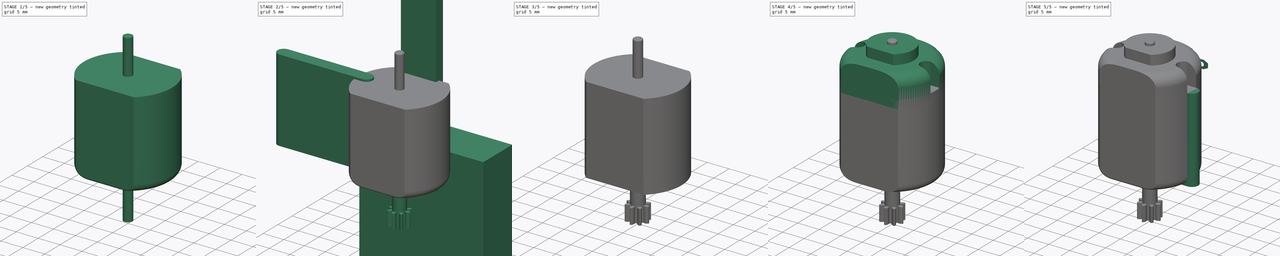
[diagram: build sequence overview — one tinted view per stage of 5, left to right]
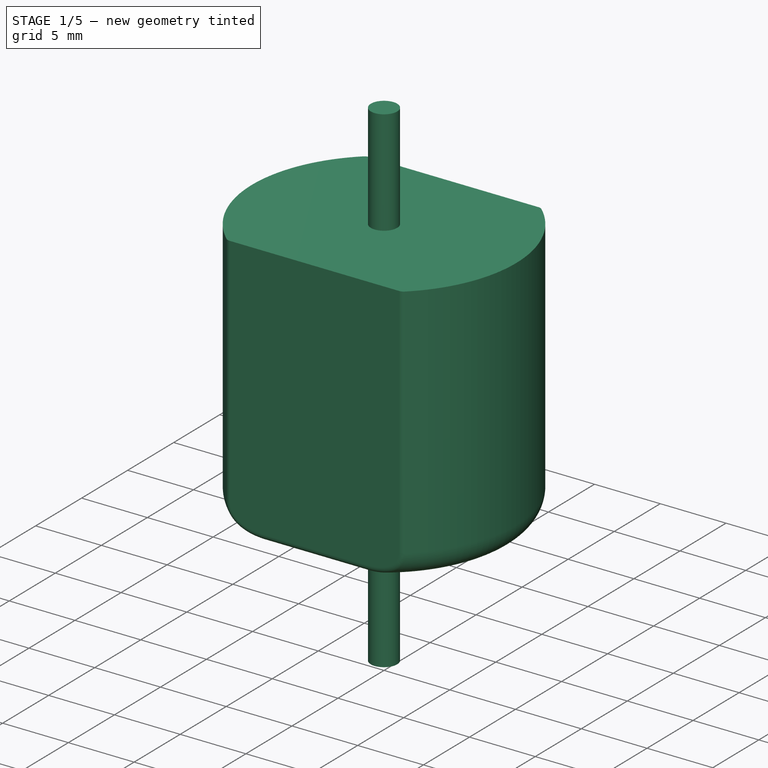
[diagram: stage 1 of 5 — iso view after this stage's code; geometry added in this stage tinted green]
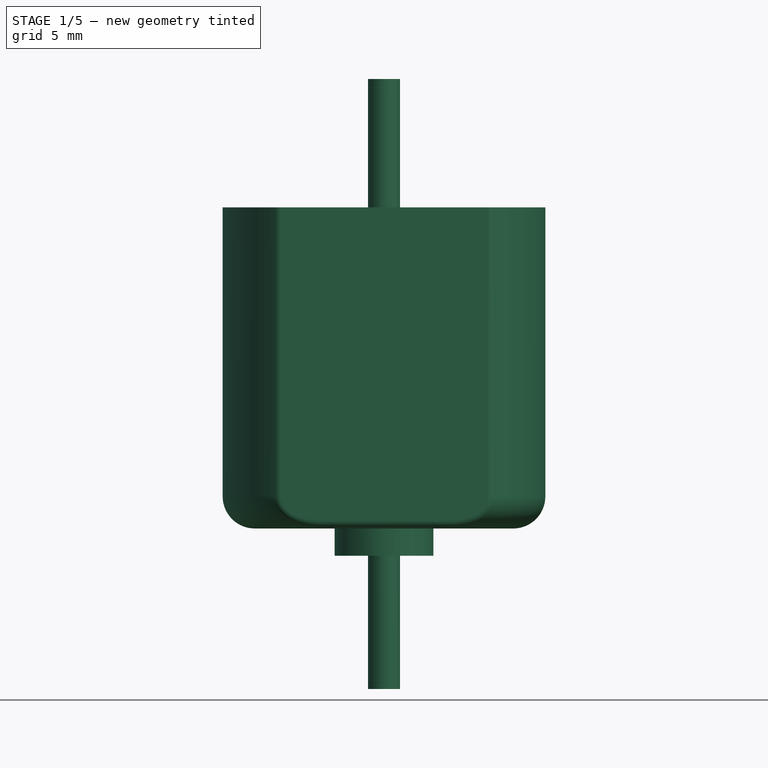
[diagram: stage 1 of 5 — front view after this stage's code; geometry added in this stage tinted green]
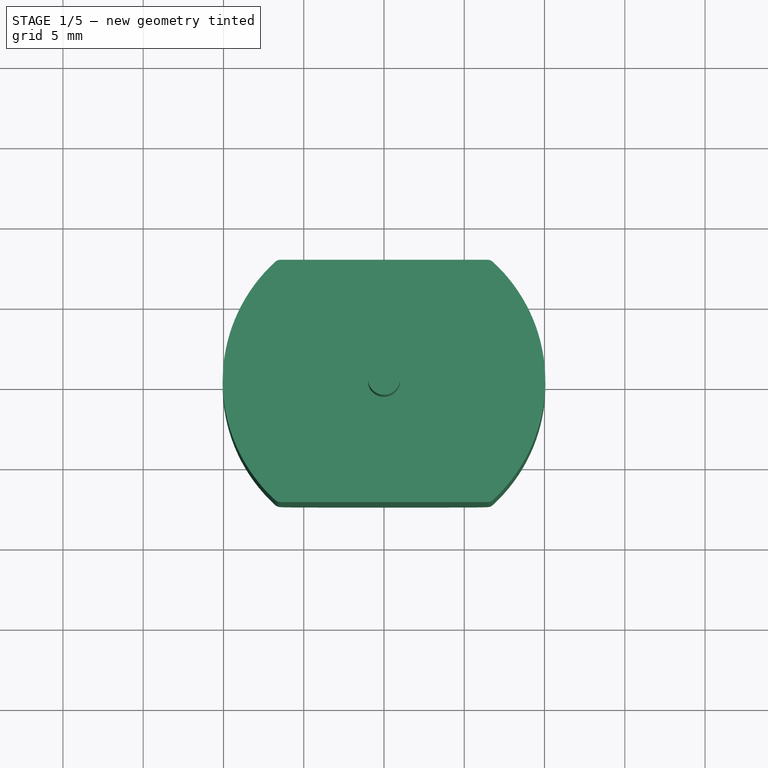
[diagram: stage 1 of 5 — top view after this stage's code; geometry added in this stage tinted green]
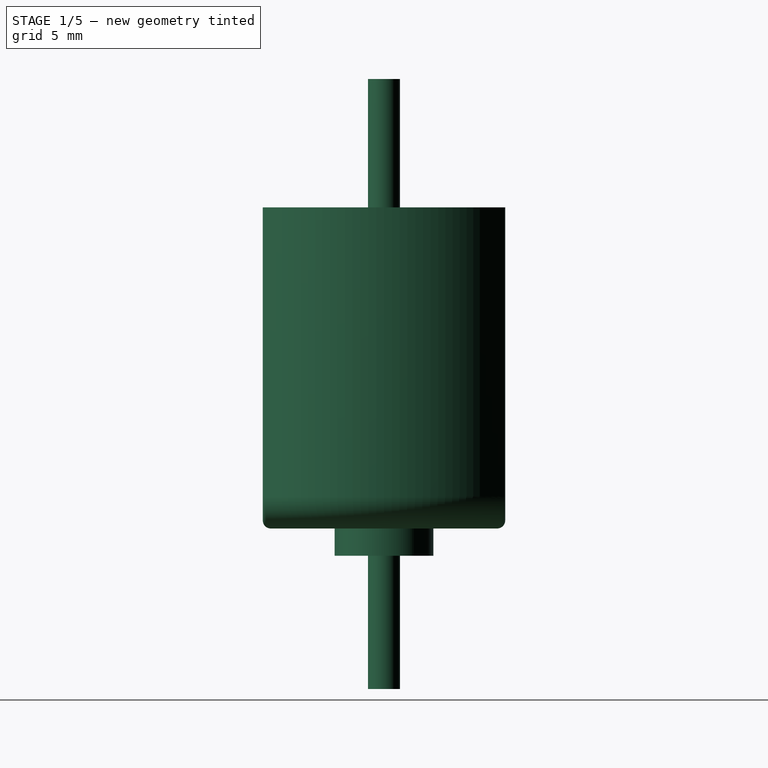
[diagram: stage 1 of 5 — right view after this stage's code; geometry added in this stage tinted green]
FCSTD DOCUMENT  (FreeCAD 0.15R4671 (Git))
Label: Motor DC 25mmDef
License: CreativeCommons Attribution-ShareAlike
LicenseURL: http://creativecommons.org/licenses/by-sa/4.0/
objects: Part::Cut×13, Part::Box×12, Part::Cylinder×7, Part::Fillet×5, Part::MultiFuse×4, PartDesign::Pad×4, Sketcher::SketchObject×3, Part::FeaturePython×3, App::DocumentObjectGroup×3, Part::Thickness×2, Part::Part2DObjectPython×1
note: 58 computed .brp shape members not serialized (recipe doc carries the construction recipe); baked Part::Feature solids carry a one-line shape summary decoded from their .brp

FEATURE [Part::Cylinder] Cylinder002  label="Cilindro005"
  Angle = 360
  Height = 20
  Radius = 10.05
FEATURE [Part::Box] Box008  label="Cubo009"
  Height = 30
  Length = 30
  Placement = pos=(-15,7.55,-3) rot=(0,0,1;0rad)
  Width = 10
FEATURE [Part::Box] Box009  label="Cubo010"
  Height = 30
  Length = 30
  Placement = pos=(-15,-17.55,-3) rot=(0,0,1;0rad)
  Width = 10
FEATURE [Part::Fillet] Fillet001
  Base = -> Cylinder002
  Edges = 1 edges r=2: [Edge3]
FEATURE [Part::Cut] Cut008
  Base = -> Fillet001
  Tool = -> Box009
FEATURE [Part::Cut] Cut009  label="CuerpoBase"
  Base = -> Cut008
  Tool = -> Box008
FEATURE [App::DocumentObjectGroup] Grupo003  label="GrTapa2"
  Group = -> [Fusion,Clone,Cut020]
FEATURE [Part::Thickness] Thickness001
  Intersection = false
  Join = 0
  Mode = 0
  Placement = pos=(0,0,24) rot=(1,0,0;3.14159rad)
  SelfIntersection = false
  Value = -0.1
FEATURE [Part::MultiFuse] Fusion003
  Shapes = -> [Cut009,Thickness001]
FEATURE [App::DocumentObjectGroup] Grupo002  label="Cuerpo"
  Group = -> [Cylinder006,Fusion003]
FEATURE [Part::Cylinder] Cylinder007  label="preEje"
  Angle = 360
  Height = 38
  Placement = pos=(0,0,-10) rot=(0,0,1;0rad)
  Radius = 1
FEATURE [Part::Fillet] Fillet004  label="CuerpoMotor"
  Base = -> Fusion003
  Edges = 6 edges r=0.5: [Edge7,Edge11,Edge15,Edge16,Edge19,Edge21]
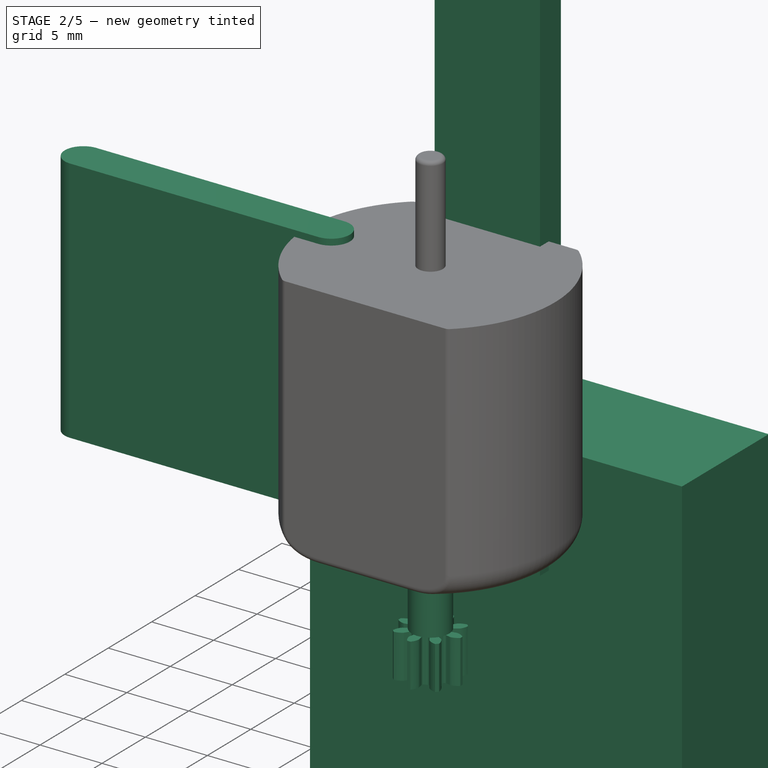
[diagram: stage 2 of 5 — iso view after this stage's code; geometry added in this stage tinted green]
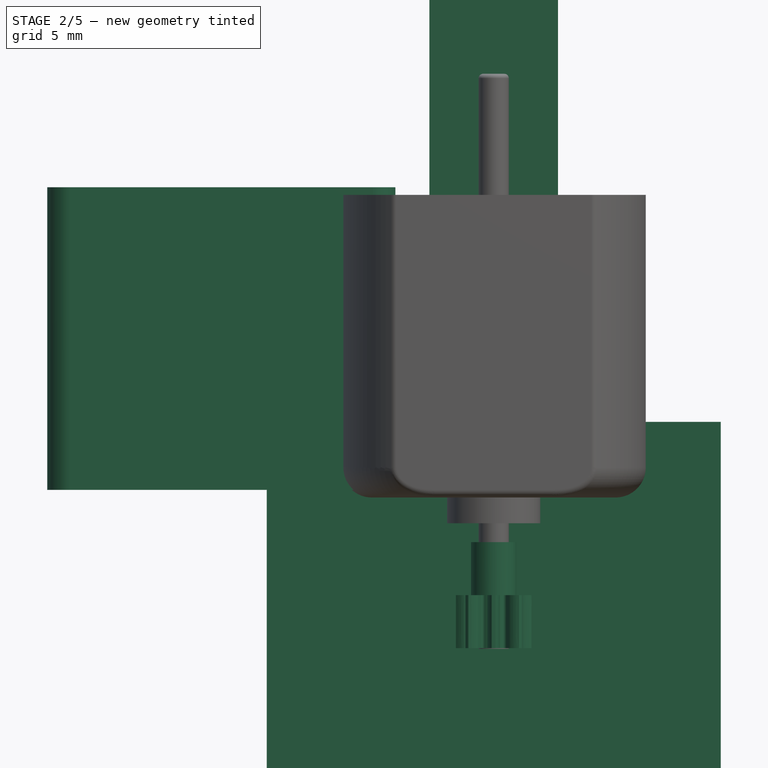
[diagram: stage 2 of 5 — front view after this stage's code; geometry added in this stage tinted green]
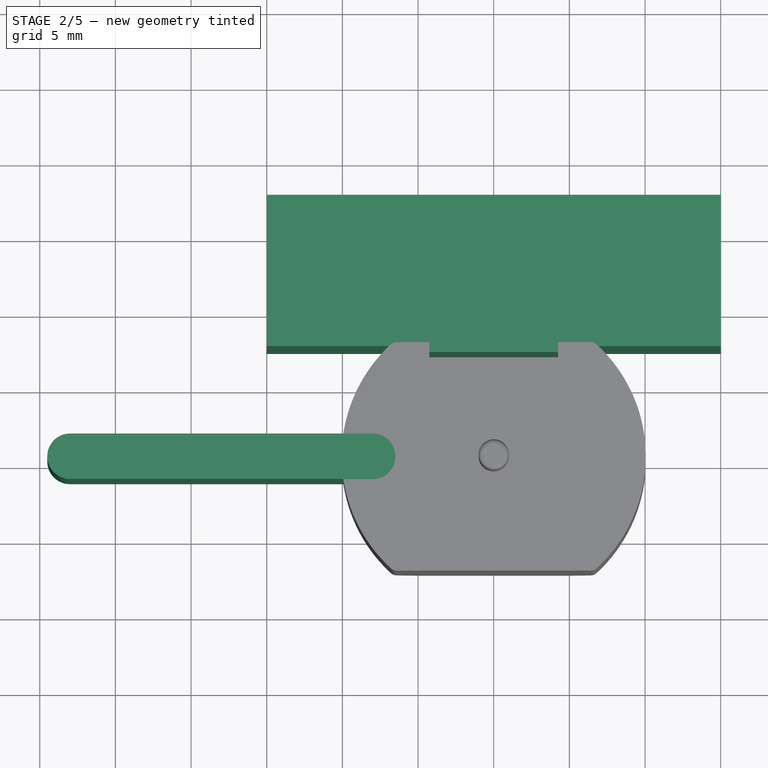
[diagram: stage 2 of 5 — top view after this stage's code; geometry added in this stage tinted green]
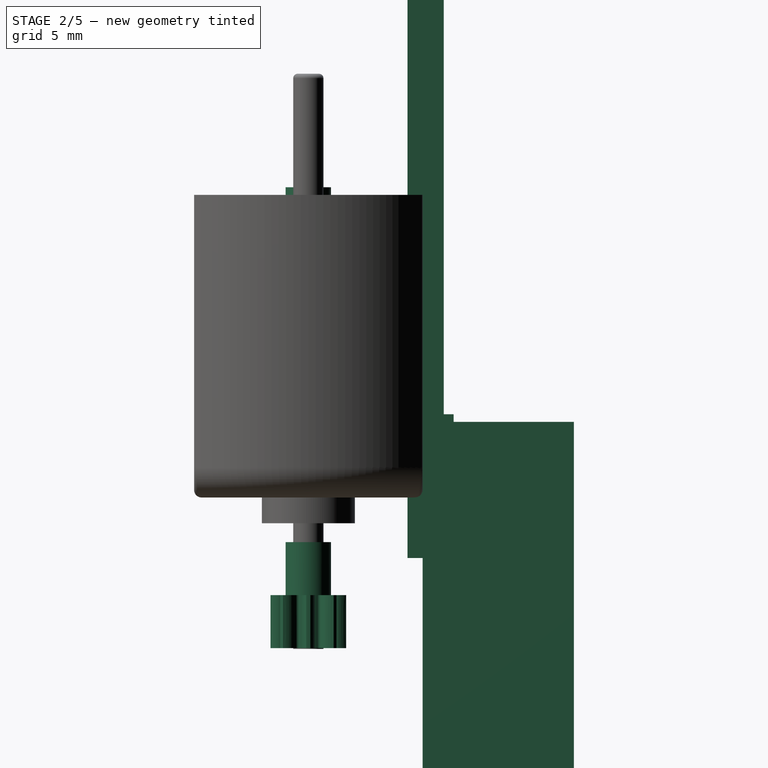
[diagram: stage 2 of 5 — right view after this stage's code; geometry added in this stage tinted green]
FEATURE [Part::Box] Box014  label="Cubo015"
  Height = 44
  Length = 8.5
  Placement = pos=(-4.25,6.55,-4) rot=(0,0,1;0rad)
  Width = 2.4
FEATURE [Part::Box] Box015  label="Cubo016"
  Height = 30
  Length = 30
  Placement = pos=(-15,7.55,-25) rot=(0,0,1;0rad)
  Width = 10
FEATURE [Part::Box] Box016  label="Cubo017"
  Height = 2
  Length = 2
  Placement = pos=(-1,7.6,3.5) rot=(0,0,1;0rad)
  Width = 2
FEATURE [Sketcher::SketchObject] Sketch002
  sketch-geometry (4):
    g0: ArcOfCircle CenterX=-10 CenterY=0 CenterZ=0 NormalX=0 NormalY=0 NormalZ=1 Radius=1.5 StartAngle=1.5708 EndAngle=4.71239
    g1: ArcOfCircle CenterX=10 CenterY=0 CenterZ=0 NormalX=0 NormalY=0 NormalZ=1 Radius=1.5 StartAngle=4.71239 EndAngle=7.85398
    g2: LineSegment StartX=-10 StartY=-1.5 StartZ=0 EndX=10 EndY=-1.5 EndZ=0
    g3: LineSegment StartX=-10 StartY=1.5 StartZ=0 EndX=10 EndY=1.5 EndZ=0
  constraints (10):
    c: Tangent(g0,g3) = 1.5708
    c: Tangent(g0,g2) = -1.5708
    c: Tangent(g2,g1) = -1.5708
    c: Tangent(g3,g1) = 1.5708
    c: Horizontal(g2)
    c: Equal(g0,g1)
    c: PointOnObject(g0,g-1)
    c: Symmetric(g0,g1,g-2)
    c: Radius(g0) = 1.5
    c: DistanceX(g0,g1) = 20
FEATURE [PartDesign::Pad] Pad002
  Length = 20
  Length2 = 100
  Sketch = -> Sketch002
  Type = 0
FEATURE [App::DocumentObjectGroup] Grupo001  label="GR_AuxMotor"
  Group = -> [Pad,Pad001,Pad002]
FEATURE [Part::FeaturePython] Clone003  label="Clone of Pad003"  # Draft clone (typed FeaturePython)
  Objects = -> [Pad002]
  Placement = pos=(-18,0,0.5) rot=(0,0,1;0rad)
  Scale = (1,1,1)
FEATURE [Part::Cylinder] Cylinder006  label="Cilindro009"
  Angle = 360
  Height = 1.6
  Placement = pos=(0,0,-1.7) rot=(0,0,1;0rad)
  Radius = 2.95
FEATURE [Part::Part2DObjectPython] InvoluteGear  # Draft 2D object (typed FeaturePython)
  ExternalGear = true
  HighPrecision = true
  Modules = 0.5
  NumberOfTeeth = 8
  PressureAngle = 20
FEATURE [PartDesign::Pad] Pad003
  Length = 3.5
  Length2 = 100
  Sketch = -> InvoluteGear
  Type = 0
FEATURE [Part::Cylinder] Cylinder008  label="Cilindro003"
  Angle = 360
  Height = 3.5
  Placement = pos=(0,0,3.5) rot=(0,0,1;0rad)
  Radius = 1.5
FEATURE [Part::MultiFuse] Fusion004  label="RDentada"
  Placement = pos=(0,0,-9.95) rot=(0,0,1;0rad)
  Shapes = -> [Pad003,Cylinder008]
FEATURE [Part::Fillet] Fillet  label="Eje"
  Base = -> Cylinder007
  Edges = 1 edges r=0.3: [Edge1]
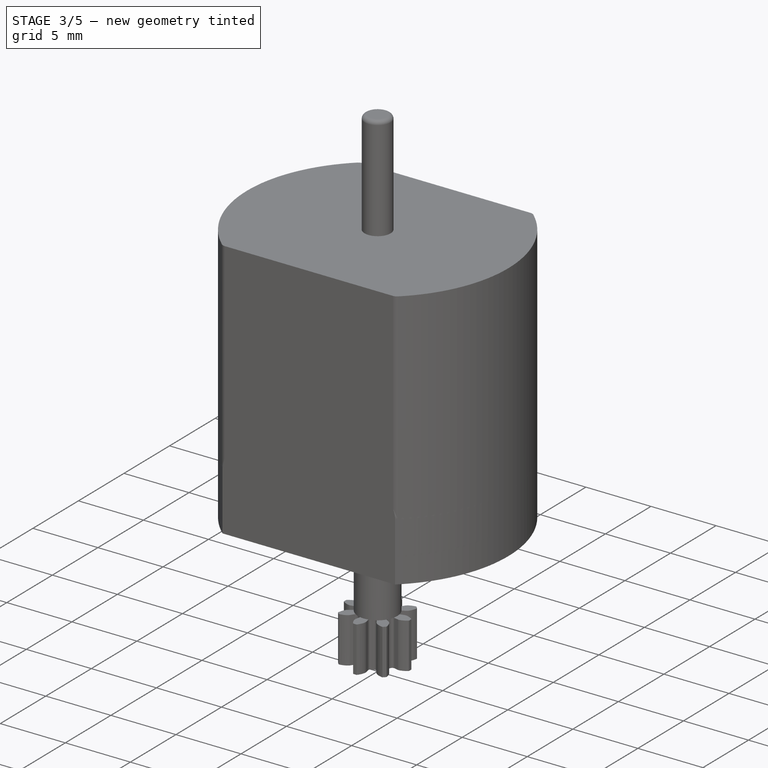
[diagram: stage 3 of 5 — iso view after this stage's code; geometry added in this stage tinted green]
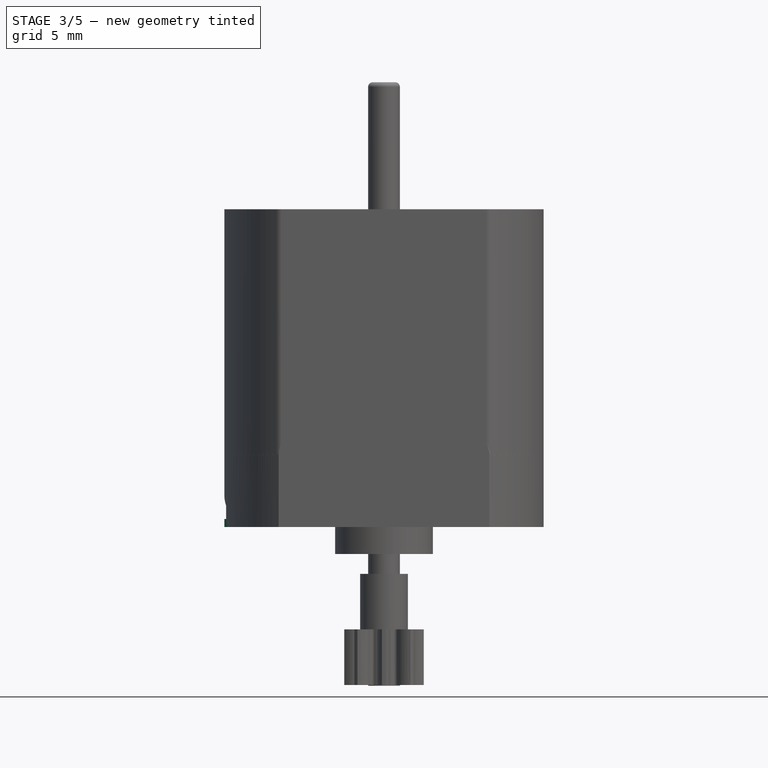
[diagram: stage 3 of 5 — front view after this stage's code; geometry added in this stage tinted green]
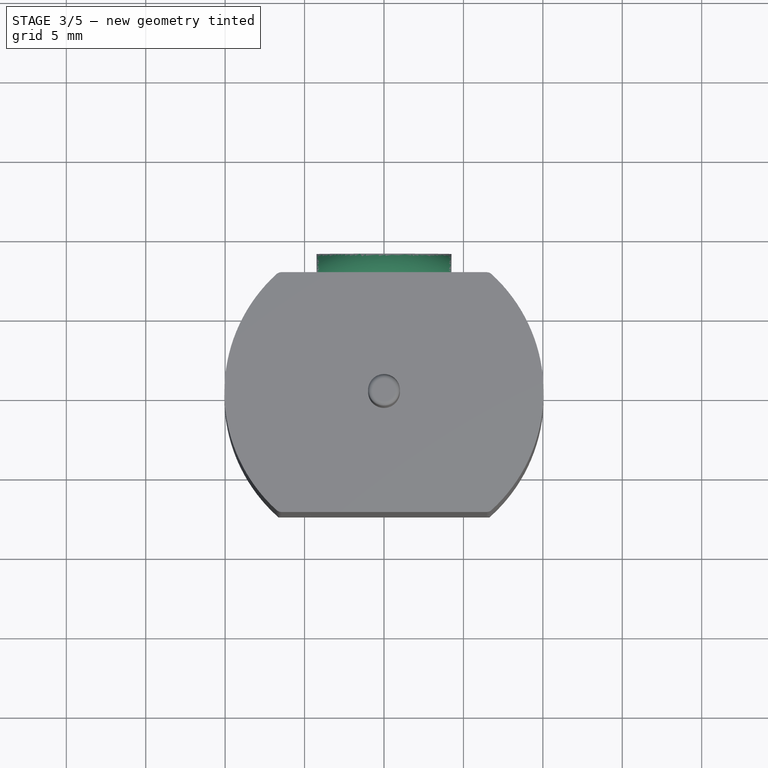
[diagram: stage 3 of 5 — top view after this stage's code; geometry added in this stage tinted green]
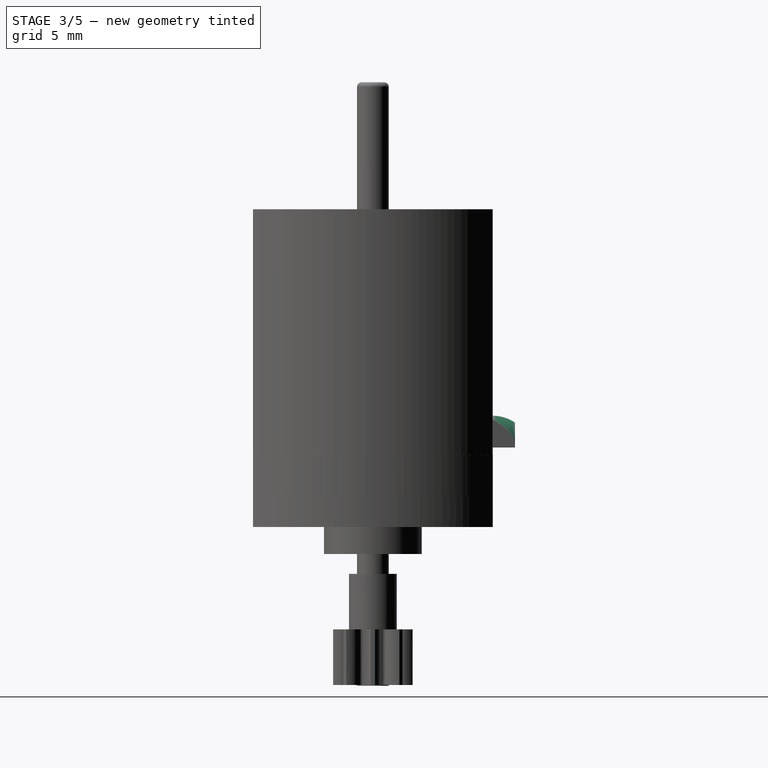
[diagram: stage 3 of 5 — right view after this stage's code; geometry added in this stage tinted green]
FEATURE [Part::Cylinder] Cylinder004  label="Cilindro007"
  Angle = 360
  Height = 7
  Radius = 10.05
FEATURE [Part::Box] Box012  label="Cubo013"
  Height = 30
  Length = 30
  Placement = pos=(-15,7.55,-3) rot=(0,0,1;0rad)
  Width = 10
FEATURE [Part::Box] Box013  label="Cubo014"
  Height = 30
  Length = 30
  Placement = pos=(-15,-17.55,-3) rot=(0,0,1;0rad)
  Width = 10
FEATURE [Part::Fillet] Fillet003
  Base = -> Cylinder004
  Edges = 1 edges r=2.5: [Edge1]
FEATURE [Part::Cut] Cut012
  Base = -> Box012
  Placement = pos=(0,0,-12) rot=(0,0,1;0rad)
  Tool = -> Box014
FEATURE [Part::Cut] Cut013
  Base = -> Fillet003
  Tool = -> Cut012
FEATURE [Part::Cut] Cut014
  Base = -> Cut013
  Tool = -> Box013
FEATURE [Part::Cut] Cut015
  Base = -> Cut014
  Tool = -> Box015
FEATURE [Part::Cut] Cut016
  Base = -> Cut015
  Tool = -> Box016
FEATURE [Part::Cut] Cut018
  Base = -> Cut016
  Tool = -> Clone003
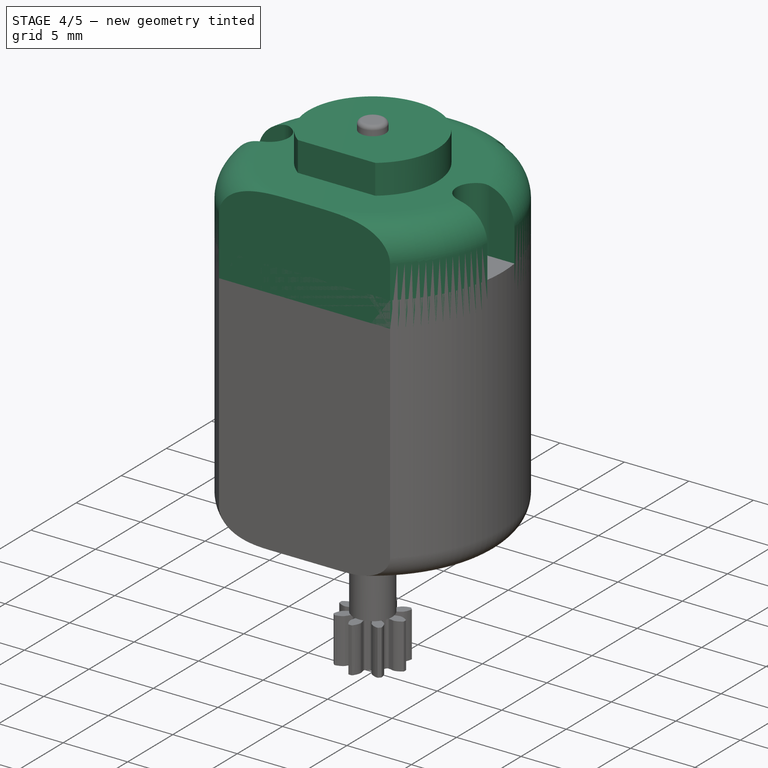
[diagram: stage 4 of 5 — iso view after this stage's code; geometry added in this stage tinted green]
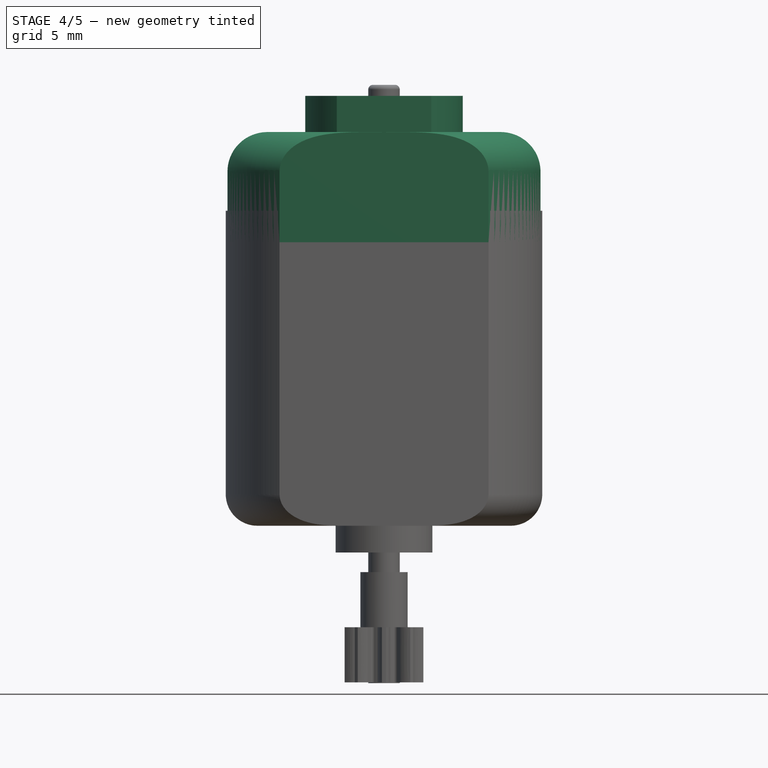
[diagram: stage 4 of 5 — front view after this stage's code; geometry added in this stage tinted green]
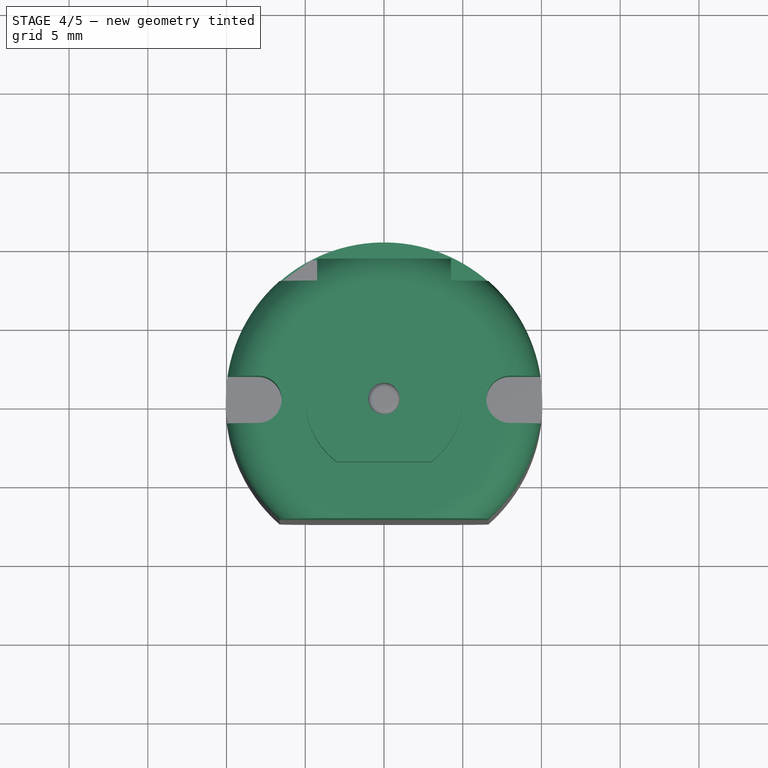
[diagram: stage 4 of 5 — top view after this stage's code; geometry added in this stage tinted green]
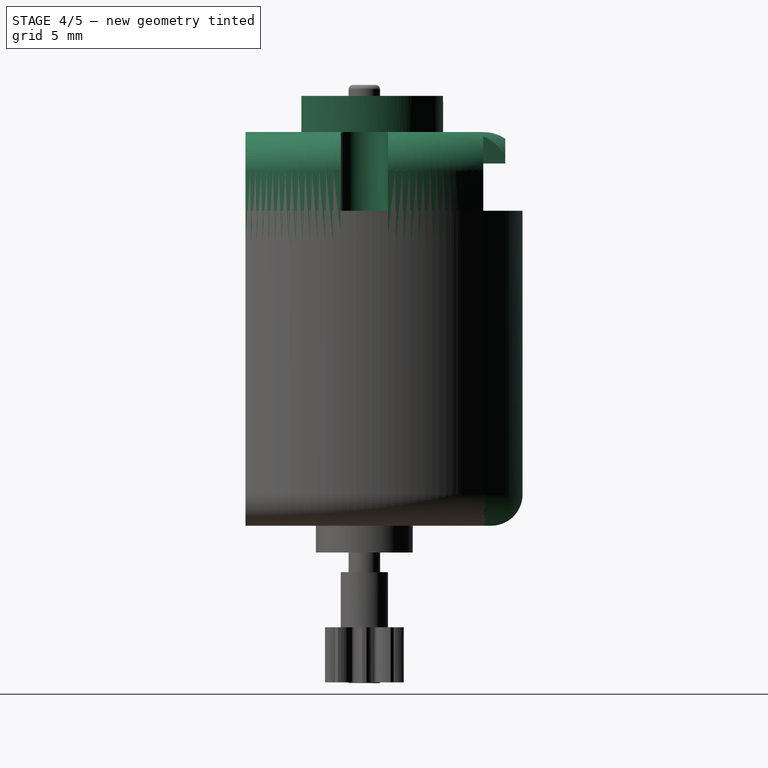
[diagram: stage 4 of 5 — right view after this stage's code; geometry added in this stage tinted green]
FEATURE [Part::Cylinder] Cylinder003  label="Cilindro006"
  Angle = 360
  Height = 20
  Radius = 10.05
FEATURE [Part::Box] Box011  label="Cubo012"
  Height = 30
  Length = 30
  Placement = pos=(-15,-17.55,-3) rot=(0,0,1;0rad)
  Width = 10
FEATURE [Part::Fillet] Fillet002
  Base = -> Cylinder003
  Edges = 1 edges r=2: [Edge3]
FEATURE [Part::Cut] Cut010
  Base = -> Fillet002
  Tool = -> Box011
FEATURE [Part::Cylinder] Cylinder005  label="Cilindro008"
  Angle = 360
  Height = 3.3
  Radius = 5
FEATURE [Part::Box] Box017  label="Cubo018"
  Height = 10
  Length = 20
  Placement = pos=(-10,-14,-3) rot=(0,0,1;0rad)
  Width = 10
FEATURE [Part::Cut] Cut017  label="parteFinal001"
  Base = -> Cylinder005
  Placement = pos=(0,0,6) rot=(0,0,1;0rad)
  Tool = -> Box017
FEATURE [Part::FeaturePython] Clone004  label="Clone of Pad004"  # Draft clone (typed FeaturePython)
  Objects = -> [Pad002]
  Placement = pos=(18,0,0.5) rot=(0,0,1;0rad)
  Scale = (1,1,1)
FEATURE [Part::Cut] Cut019  label="preTapa001"
  Base = -> Cut018
  Tool = -> Clone004
FEATURE [Part::MultiFuse] Fusion002  label="Tapa001"
  Placement = pos=(0,0,18) rot=(0,0,1;0rad)
  Shapes = -> [Cut019,Cut017]
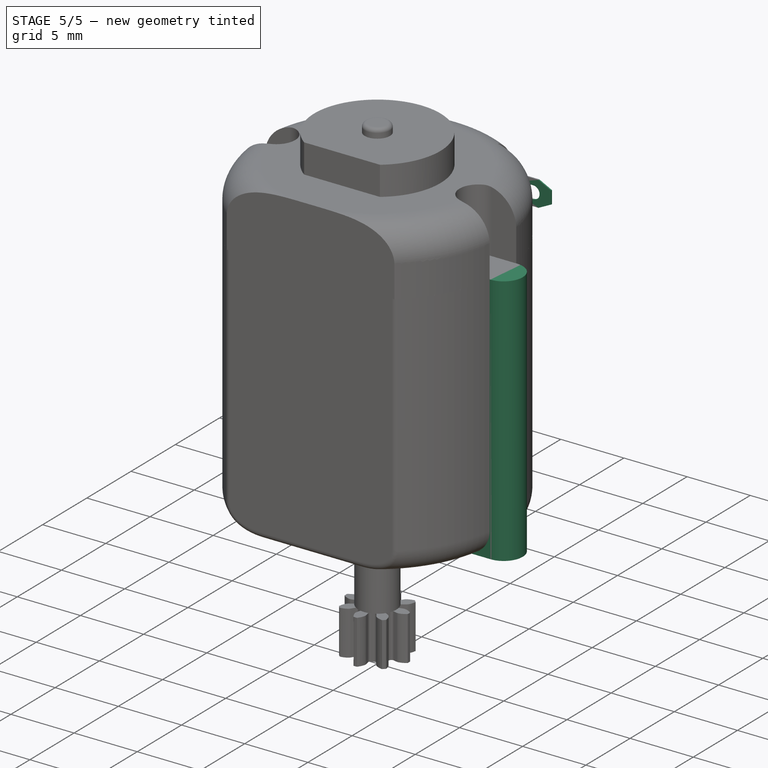
[diagram: stage 5 of 5 — iso view after this stage's code; geometry added in this stage tinted green]
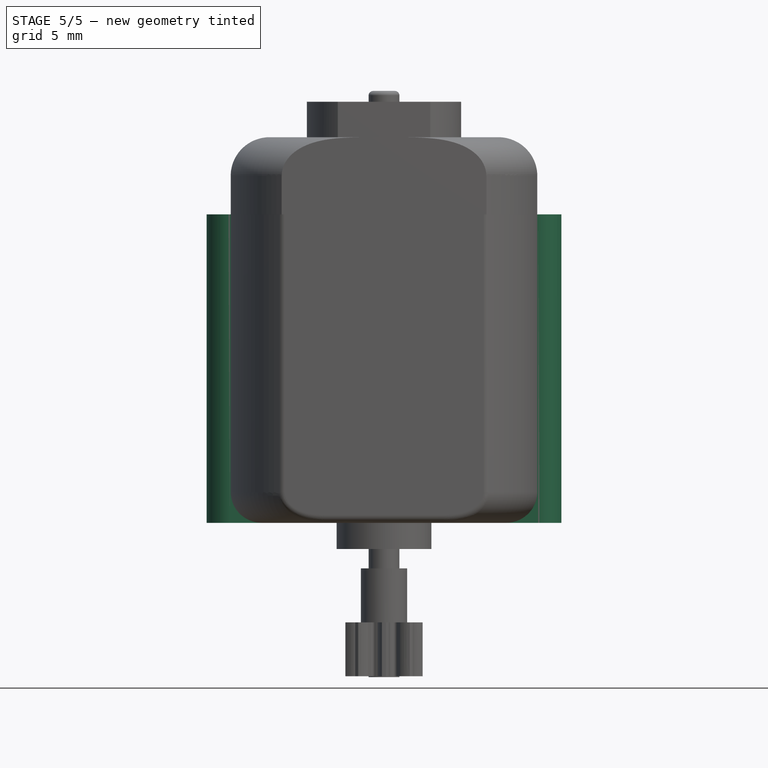
[diagram: stage 5 of 5 — front view after this stage's code; geometry added in this stage tinted green]
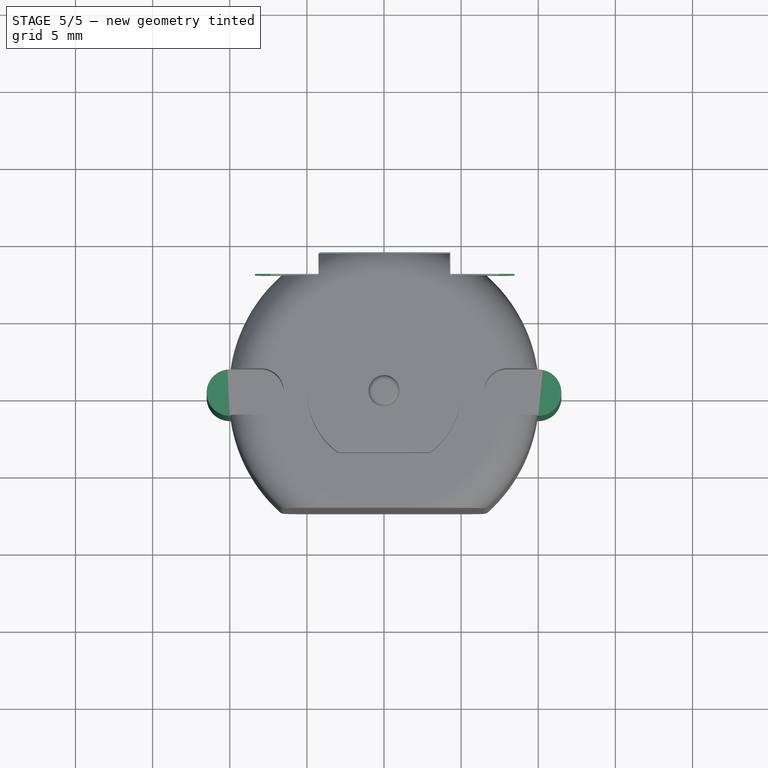
[diagram: stage 5 of 5 — top view after this stage's code; geometry added in this stage tinted green]
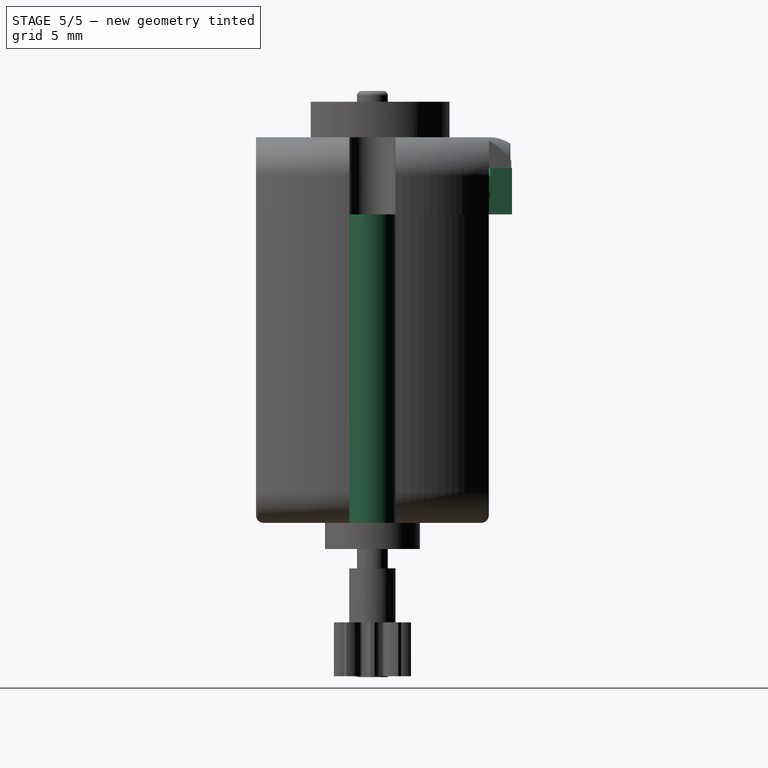
[diagram: stage 5 of 5 — right view after this stage's code; geometry added in this stage tinted green]
FEATURE [Part::Box] Box005  label="Cubo006"
  Height = 3
  Length = 8.5
  Placement = pos=(-4.25,7.55,2) rot=(0,0,1;0rad)
  Width = 1.5
FEATURE [Part::Box] Box006  label="Cubo007"
  Height = 2
  Length = 1.9
  Placement = pos=(-1,7.6,3.5) rot=(0,0,1;0rad)
  Width = 1.4
FEATURE [Part::MultiFuse] Fusion  label="SujetaConector"
  Placement = pos=(0.05,0,18) rot=(0,0,1;0rad)
  Shapes = -> [Box005,Box006]
FEATURE [Sketcher::SketchObject] Sketch
  Placement = pos=(0,0,0) rot=(1,0,0;1.5708rad)
  sketch-geometry (16):
    g0: LineSegment StartX=-7.41153 StartY=1 StartZ=0 EndX=7.41153 EndY=1 EndZ=0
    g1: LineSegment StartX=8.41153 StartY=0.5 StartZ=0 EndX=8.41153 EndY=-0.5 EndZ=0
    g2: LineSegment StartX=7.41153 StartY=-1 StartZ=0 EndX=-7.41153 EndY=-1 EndZ=0
    g3: LineSegment StartX=-8.41153 StartY=-0.5 StartZ=0 EndX=-8.41153 EndY=0.5 EndZ=0
    g4: ArcOfCircle CenterX=-7 CenterY=0 CenterZ=0 NormalX=0 NormalY=0 NormalZ=1 Radius=0.5 StartAngle=1.5708 EndAngle=4.71239
    g5: ArcOfCircle CenterX=-6 CenterY=0 CenterZ=0 NormalX=0 NormalY=0 NormalZ=1 Radius=0.5 StartAngle=4.71239 EndAngle=7.85398
    g6: LineSegment StartX=-7 StartY=-0.5 StartZ=0 EndX=-6 EndY=-0.5 EndZ=0
    g7: LineSegment StartX=-7 StartY=0.5 StartZ=0 EndX=-6 EndY=0.5 EndZ=0
    g8: ArcOfCircle CenterX=6 CenterY=0 CenterZ=0 NormalX=0 NormalY=0 NormalZ=1 Radius=0.5 StartAngle=1.5708 EndAngle=4.71239
    g9: ArcOfCircle CenterX=7 CenterY=0 CenterZ=0 NormalX=0 NormalY=0 NormalZ=1 Radius=0.5 StartAngle=4.71239 EndAngle=7.85398
    g10: LineSegment StartX=6 StartY=-0.5 StartZ=0 EndX=7 EndY=-0.5 EndZ=0
    g11: LineSegment StartX=6 StartY=0.5 StartZ=0 EndX=7 EndY=0.5 EndZ=0
    g12: LineSegment StartX=-8.41153 StartY=-0.5 StartZ=0 EndX=-7.41153 EndY=-1 EndZ=0
    g13: LineSegment StartX=-8.41153 StartY=0.5 StartZ=0 EndX=-7.41153 EndY=1 EndZ=0
    g14: LineSegment StartX=7.41153 StartY=1 StartZ=0 EndX=8.41153 EndY=0.5 EndZ=0
    g15: LineSegment StartX=8.41153 StartY=-0.5 StartZ=0 EndX=7.41153 EndY=-1 EndZ=0
  constraints (39):
    c: Horizontal(g0)
    c: Horizontal(g2)
    c: Vertical(g1)
    c: Tangent(g4,g7) = 1.5708
    c: Tangent(g4,g6) = -1.5708
    c: Tangent(g6,g5) = -1.5708
    c: Tangent(g7,g5) = 1.5708
    c: Horizontal(g6)
    c: Equal(g4,g5)
    c: PointOnObject(g4,g-1)
    c: Radius(g4) = 0.5
    c: DistanceX(g4,g5) = 1
    c: Tangent(g8,g11) = 1.5708
    c: Tangent(g8,g10) = -1.5708
    c: Tangent(g10,g9) = -1.5708
    c: Tangent(g11,g9) = 1.5708
    c: Horizontal(g10)
    c: Equal(g8,g9)
    c: Equal(g9,g4)
    c: Symmetric(g9,g4,g-2)
    c: Symmetric(g8,g5,g-2)
    c: PointOnObject(g3,g13)
    c: Coincident(g0,g13)
    c: PointOnObject(g2,g12)
    c: Coincident(g3,g13)
    c: Coincident(g2,g12)
    c: Coincident(g3,g12)
    c: DistanceY(g3) = 1
    c: Symmetric(g3,g3,g-1)
    c: Symmetric(g0,g2,g-1)
    c: DistanceX(g3,g2) = 1
    c: Coincident(g0,g14)
    c: Coincident(g1,g14)
    c: Coincident(g1,g15)
    c: Coincident(g2,g15)
    c: Symmetric(g0,g0,g-2)
    c: Symmetric(g3,g1,g-2)
    c: Symmetric(g3,g1,g-2)
    c: Symmetric(g2,g2,g-2)
FEATURE [PartDesign::Pad] Pad  label="Conector"
  Length = 0.1
  Length2 = 100
  Placement = pos=(0,0,0) rot=(1,0,0;1.5708rad)
  Sketch = -> Sketch
  Type = 0
FEATURE [Part::FeaturePython] Clone  label="Clone of Conector"  # Draft clone (typed FeaturePython)
  Objects = -> [Pad]
  Placement = pos=(0.05,7.65,22) rot=(1,0,0;1.5708rad)
  Scale = (1,1,1)
FEATURE [Sketcher::SketchObject] Sketch001
  sketch-geometry (4):
    g0: ArcOfCircle CenterX=-10 CenterY=0 CenterZ=0 NormalX=0 NormalY=0 NormalZ=1 Radius=1.5 StartAngle=1.5708 EndAngle=4.71239
    g1: ArcOfCircle CenterX=10 CenterY=0 CenterZ=0 NormalX=0 NormalY=0 NormalZ=1 Radius=1.5 StartAngle=4.71239 EndAngle=7.85398
    g2: LineSegment StartX=-10 StartY=-1.5 StartZ=0 EndX=10 EndY=-1.5 EndZ=0
    g3: LineSegment StartX=-10 StartY=1.5 StartZ=0 EndX=10 EndY=1.5 EndZ=0
  constraints (10):
    c: Tangent(g0,g3) = 1.5708
    c: Tangent(g0,g2) = -1.5708
    c: Tangent(g2,g1) = -1.5708
    c: Tangent(g3,g1) = 1.5708
    c: Horizontal(g2)
    c: Equal(g0,g1)
    c: PointOnObject(g0,g-1)
    c: Symmetric(g0,g1,g-2)
    c: Radius(g0) = 1.5
    c: DistanceX(g0,g1) = 20
FEATURE [PartDesign::Pad] Pad001
  Length = 20
  Length2 = 100
  Sketch = -> Sketch001
  Type = 0
FEATURE [Part::Box] Box010  label="Cubo011"
  Height = 30
  Length = 30
  Placement = pos=(-15,7.55,-3) rot=(0,0,1;0rad)
  Width = 10
FEATURE [Part::Cut] Cut011
  Base = -> Cut010
  Tool = -> Box010
FEATURE [Part::Thickness] Thickness
  Faces = -> Cut011 [Face6]
  Intersection = false
  Join = 0
  Mode = 0
  SelfIntersection = false
  Value = -0.2
FEATURE [Part::Cut] Cut020  label="Tapa"
  Base = -> Fusion002
  Tool = -> Thickness
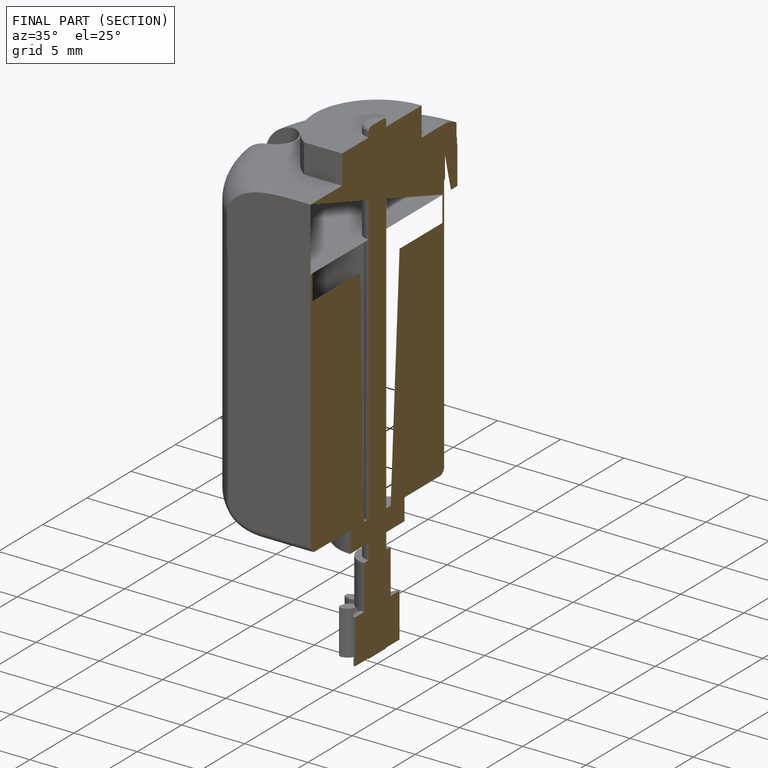
[diagram: finished part — half-section view (interior)]
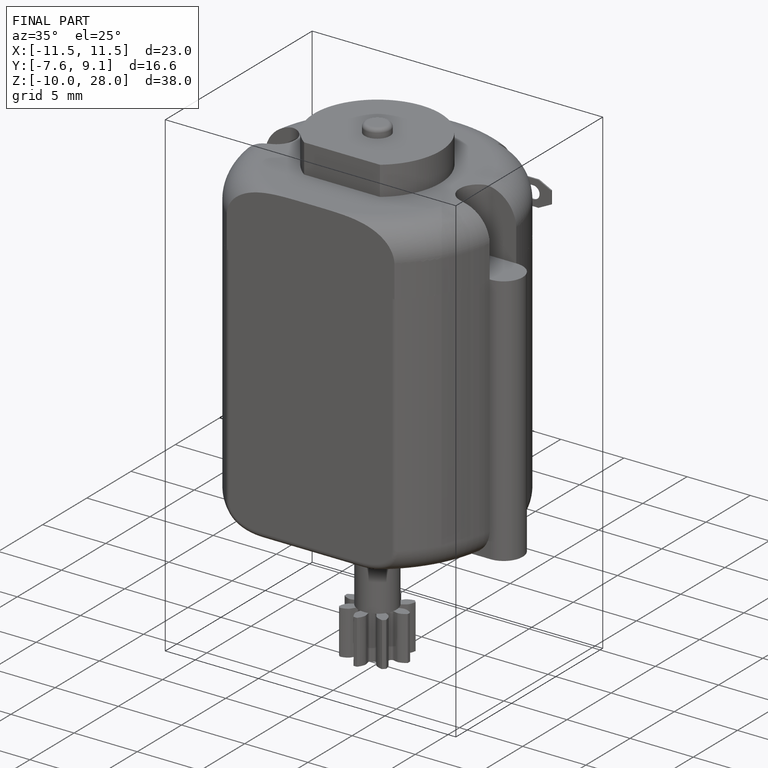
[diagram: finished part — iso view with bounding-box wireframe]
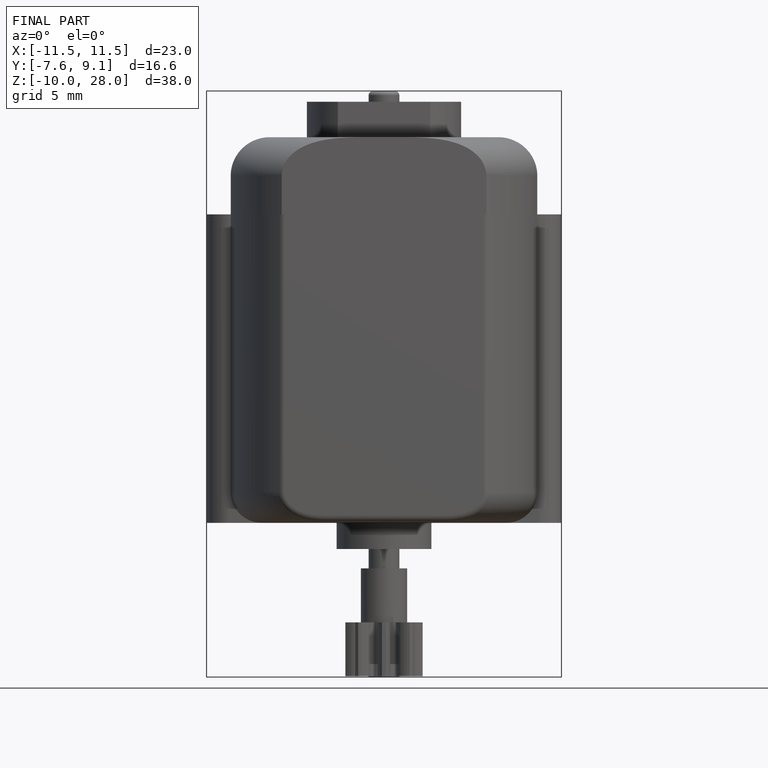
[diagram: finished part — front view with bounding-box wireframe]
